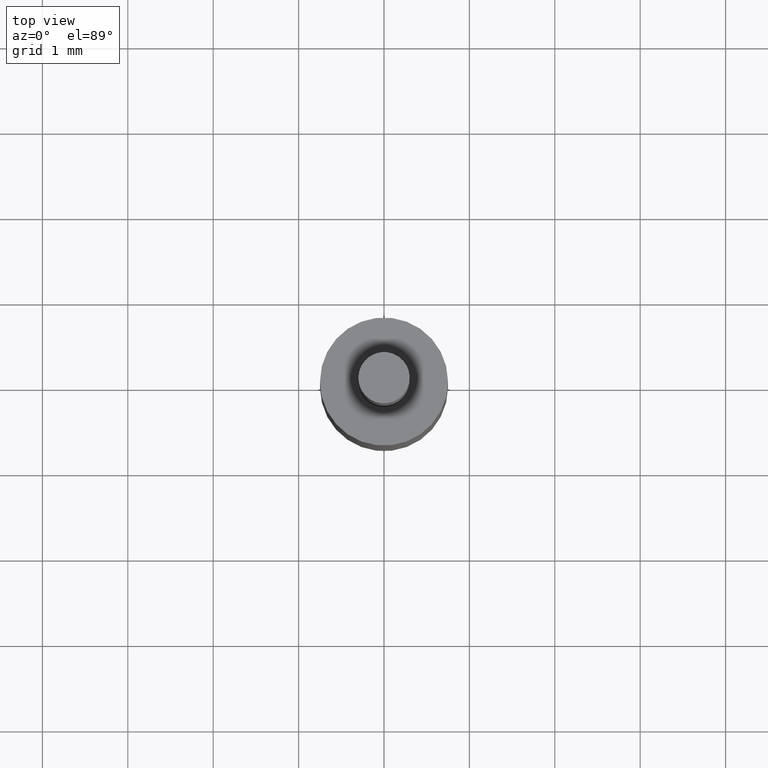
[diagram: clean part render]
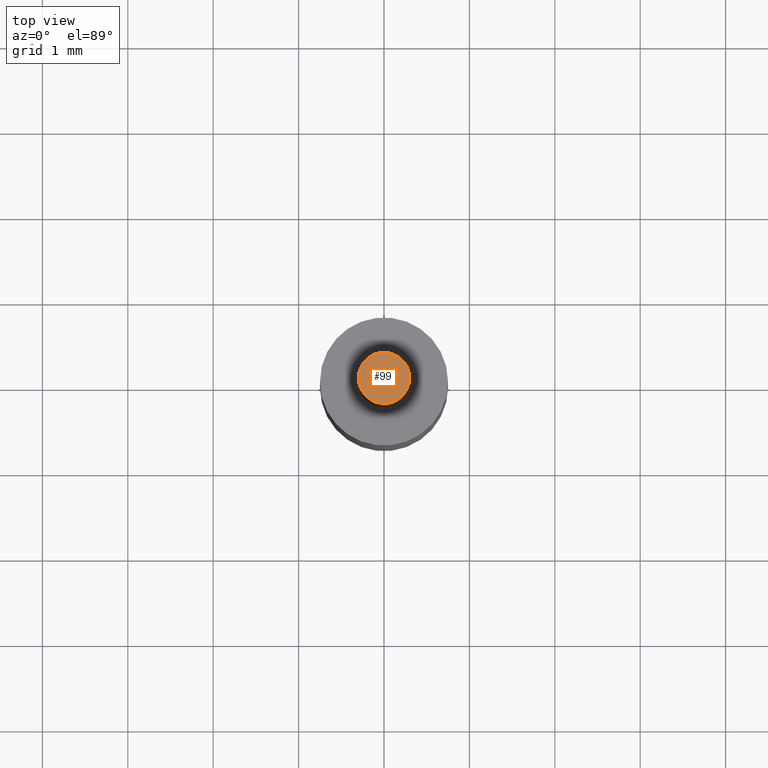
[diagram: same view with one face highlighted and labeled with its STEP entity id]
A machine part, top view. The second image highlights one B-rep face of the part: STEP entity #99.
In plain terms, the highlighted planar face has unit normal (0, 0, -1).
Its self-contained STEP definition (entity closure, byte-faithful):
#18 = DIRECTION ( 'NONE',  ( 1.000000000000000000, 0.0000000000000000000, 0.0000000000000000000 ) ) ;
#30 = AXIS2_PLACEMENT_3D ( 'NONE', #114, #252, #18 ) ;
#31 = AXIS2_PLACEMENT_3D ( 'NONE', #161, #248, #151 ) ;
#54 = ORIENTED_EDGE ( 'NONE', *, *, #142, .T. ) ;
#95 = EDGE_LOOP ( 'NONE', ( #54, #314 ) ) ;
#99 = ADVANCED_FACE ( 'NONE', ( #397 ), #190, .F. ) ;
#103 = VERTEX_POINT ( 'NONE', #276 ) ;
#114 = CARTESIAN_POINT ( 'NONE',  ( 0.0000000000000000000, 0.0000000000000000000, 8.300000000000000700 ) ) ;
#119 = DIRECTION ( 'NONE',  ( -0.0000000000000000000, -0.0000000000000000000, 1.000000000000000000 ) ) ;
#142 = EDGE_CURVE ( 'NONE', #380, #103, #222, .T. ) ;
#151 = DIRECTION ( 'NONE',  ( -1.000000000000000000, 0.0000000000000000000, -0.0000000000000000000 ) ) ;
#158 = CARTESIAN_POINT ( 'NONE',  ( 0.0000000000000000000, 0.0000000000000000000, 8.300000000000000700 ) ) ;
#161 = CARTESIAN_POINT ( 'NONE',  ( -0.2999999999999996600, 0.0000000000000000000, 8.300000000000000700 ) ) ;
#167 = AXIS2_PLACEMENT_3D ( 'NONE', #158, #119, #290 ) ;
#190 = PLANE ( 'NONE',  #31 ) ;
#222 = CIRCLE ( 'NONE', #167, 0.2999999999999996600 ) ;
#238 = EDGE_CURVE ( 'NONE', #103, #380, #425, .T. ) ;
#248 = DIRECTION ( 'NONE',  ( 0.0000000000000000000, 0.0000000000000000000, -1.000000000000000000 ) ) ;
#252 = DIRECTION ( 'NONE',  ( -0.0000000000000000000, -0.0000000000000000000, 1.000000000000000000 ) ) ;
#276 = CARTESIAN_POINT ( 'NONE',  ( -0.2999999999999996600, 3.673940397442057000E-017, 8.300000000000000700 ) ) ;
#290 = DIRECTION ( 'NONE',  ( 1.000000000000000000, 0.0000000000000000000, 0.0000000000000000000 ) ) ;
#314 = ORIENTED_EDGE ( 'NONE', *, *, #238, .T. ) ;
#365 = CARTESIAN_POINT ( 'NONE',  ( 0.2999999999999996600, 0.0000000000000000000, 8.300000000000000700 ) ) ;
#380 = VERTEX_POINT ( 'NONE', #365 ) ;
#397 = FACE_OUTER_BOUND ( 'NONE', #95, .T. ) ;
#425 = CIRCLE ( 'NONE', #30, 0.2999999999999996600 ) ;